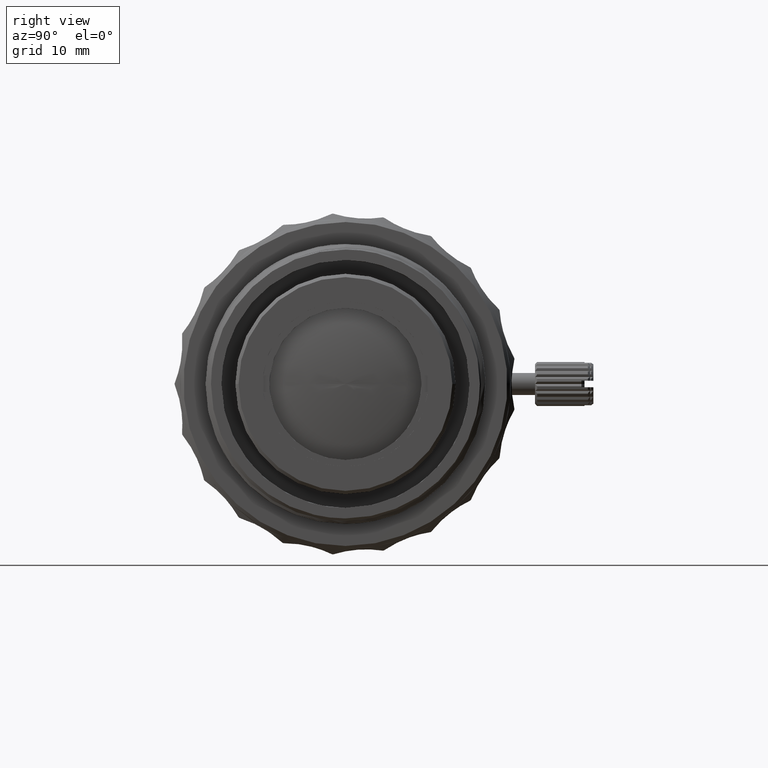
[diagram: clean part render]
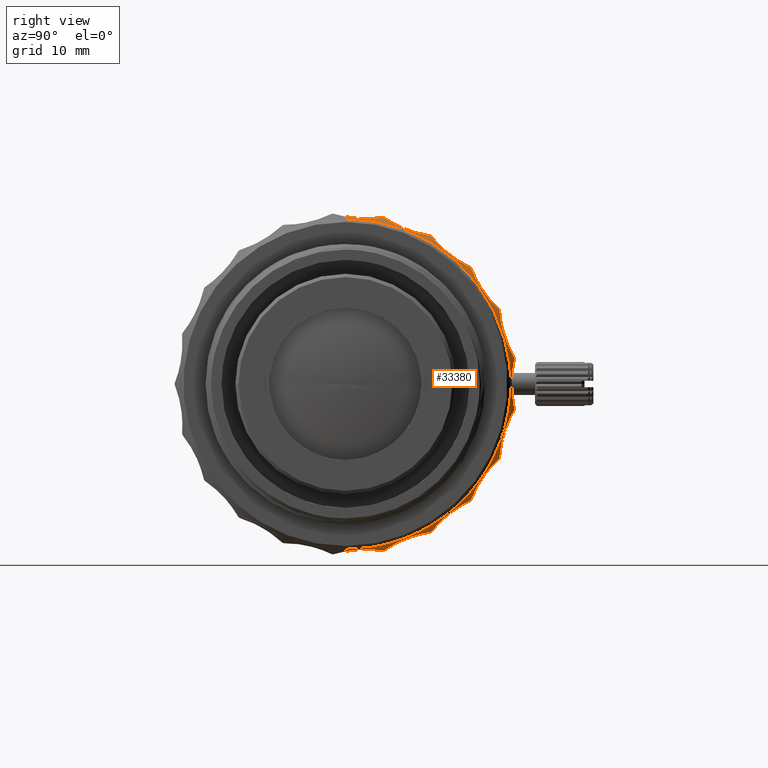
[diagram: same view with one face highlighted and labeled with its STEP entity id]
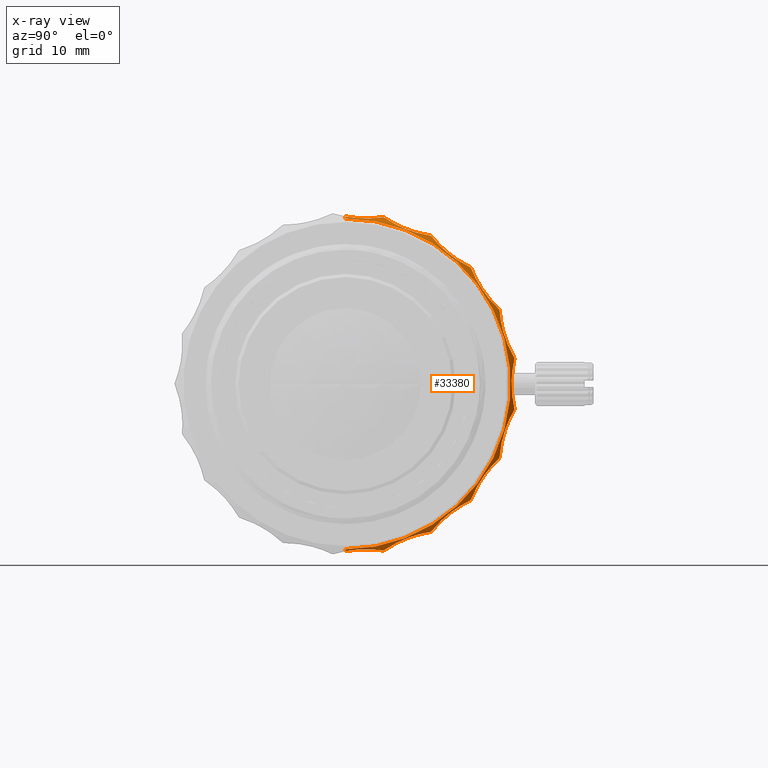
[diagram: x-ray of the same camera — body ghosted, the highlighted face saturated]
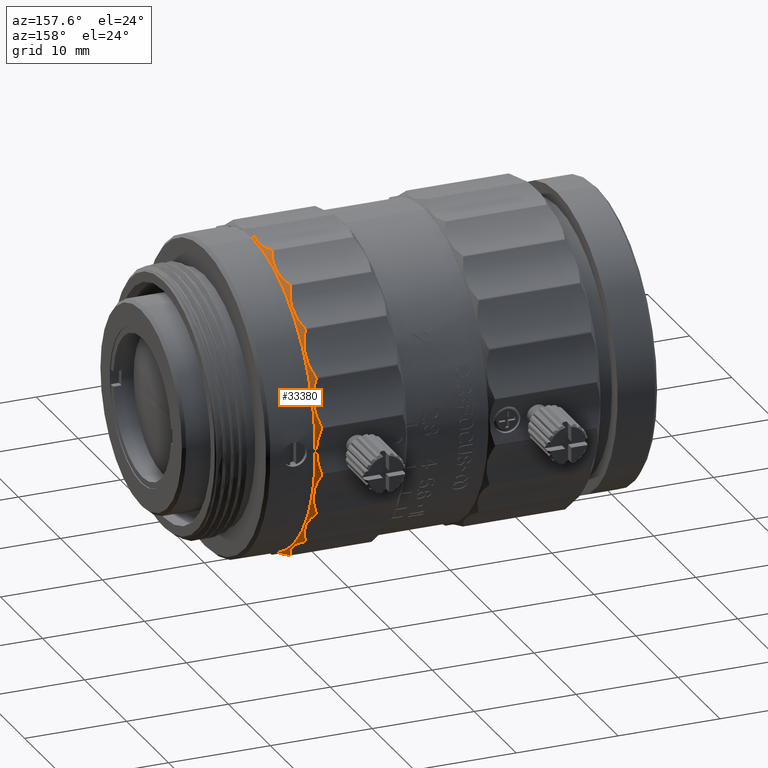
[diagram: same view with one face highlighted and labeled with its STEP entity id]
A machine part, right view. The second image highlights one B-rep face of the part: STEP entity #33380.
The next image is the same camera in x-ray: the body ghosted, the highlighted face saturated — about 0% of this face is hidden behind the body in this view.
A second angle (auxiliary view) of the same face is appended — the face is thin or edge-on in the first view.
In plain terms, the highlighted conical surface has half-angle 45 deg.
Its self-contained STEP definition (entity closure, byte-faithful):
#45 = CARTESIAN_POINT ( 'NONE',  ( -5.189933354804592724, 3.338401390903551036, -15.11566779280315487 ) ) ;
#155 = CARTESIAN_POINT ( 'NONE',  ( -4.843029582633353591, 0.2727128726363823308, -15.13302958263516729 ) ) ;
#442 = CARTESIAN_POINT ( 'NONE',  ( -5.189933354809987520, 11.42136984517044596, -10.44895437492056267 ) ) ;
#543 = CARTESIAN_POINT ( 'NONE',  ( -4.781242811604643705, 1.120612176473343213, -15.03222521955151691 ) ) ;
#813 = CARTESIAN_POINT ( 'NONE',  ( -4.859006872101620189, 11.96265288060991772, -9.296249590100142512 ) ) ;
#831 = CARTESIAN_POINT ( 'NONE',  ( -5.202768681165351516, 13.92570634578212108, -6.789824520128163954 ) ) ;
#910 = VERTEX_POINT ( 'NONE', #69014 ) ;
#1223 = CARTESIAN_POINT ( 'NONE',  ( -5.189933354806639976, 11.27327659012990857, -10.60856124041642623 ) ) ;
#1948 = ORIENTED_EDGE ( 'NONE', *, *, #45969, .T. ) ;
#2090 = CARTESIAN_POINT ( 'NONE',  ( -5.062318181597079025, 10.95099666463011623, 10.76481908734661275 ) ) ;
#2194 = CARTESIAN_POINT ( 'NONE',  ( -5.189933354812221289, 7.834066393900062764, -13.35124490095868133 ) ) ;
#2379 = CARTESIAN_POINT ( 'NONE',  ( -4.859006872095075202, 6.401242783422100402, 13.73132955000739841 ) ) ;
#2424 = CARTESIAN_POINT ( 'NONE',  ( -5.189933354812378496, 15.32288212316973741, 2.199459049155797707 ) ) ;
#2483 = CARTESIAN_POINT ( 'NONE',  ( -4.997818382580611285, 2.805048302243452696, -15.03671790518986562 ) ) ;
#2773 = CARTESIAN_POINT ( 'NONE',  ( -4.787975951717198697, 5.158142970298890795, 14.17324892316079854 ) ) ;
#2791 = EDGE_CURVE ( 'NONE', #66109, #54467, #76570, .T. ) ;
#2849 = CARTESIAN_POINT ( 'NONE',  ( -4.962051012399115280, 15.18315830208983108, -1.492746802016625685 ) ) ;
#2882 = CARTESIAN_POINT ( 'NONE',  ( -4.865722956246789188, 2.244693147680612899, -14.99899148825051753 ) ) ;
#3032 = CARTESIAN_POINT ( 'NONE',  ( -5.202768708097958772, 11.30567882174797845, 10.59285804029776301 ) ) ;
#3062 = CARTESIAN_POINT ( 'NONE',  ( -5.189933354807205745, 7.834052412506481211, 13.35125310476166582 ) ) ;
#3107 = CARTESIAN_POINT ( 'NONE',  ( -4.823379031644251747, 6.213611647818624739, -13.78180046673251447 ) ) ;
#3158 = CARTESIAN_POINT ( 'NONE',  ( -4.832619129399570390, 6.222470874565773968, 13.78440178667723615 ) ) ;
#3541 = VERTEX_POINT ( 'NONE', #38176 ) ;
#3568 = ORIENTED_EDGE ( 'NONE', *, *, #59882, .T. ) ;
#3616 = CARTESIAN_POINT ( 'NONE',  ( -4.788054585054470458, 15.07803394510130701, 0.3817060448345084844 ) ) ;
#3792 = CARTESIAN_POINT ( 'NONE',  ( -5.202768681149106733, 11.40811011138728936, 10.48246335214695080 ) ) ;
#3881 = CARTESIAN_POINT ( 'NONE',  ( -5.202768708102738948, 13.92569929078047863, 6.789839051503815170 ) ) ;
#4138 = ORIENTED_EDGE ( 'NONE', *, *, #10659, .T. ) ;
#5138 = ORIENTED_EDGE ( 'NONE', *, *, #17777, .F. ) ;
#5828 = B_SPLINE_CURVE_WITH_KNOTS ( 'NONE', 3,
 ( #14149, #19237, #54510, #49793, #831, #36883 ),
 .UNSPECIFIED., .F., .F.,
 ( 4, 2, 4 ),
 ( 1.339340778029925837E-15, 0.0001133021664053021155, 0.0002266043328092648889 ),
 .UNSPECIFIED. ) ;
#6529 = CARTESIAN_POINT ( 'NONE',  ( -4.797041463113853155, 14.30141323258823682, -4.808707378282446321 ) ) ;
#6710 = CARTESIAN_POINT ( 'NONE',  ( -5.062318181601936473, 11.55309554662042970, -10.11591030124385071 ) ) ;
#6741 = VERTEX_POINT ( 'NONE', #45 ) ;
#7315 = CARTESIAN_POINT ( 'NONE',  ( -4.832619129403237679, 14.65672697440380112, 3.729508117602908346 ) ) ;
#7496 = CARTESIAN_POINT ( 'NONE',  ( -4.823379031649619009, 12.89749229769112482, -7.886804564961400921 ) ) ;
#7529 = CARTESIAN_POINT ( 'NONE',  ( -4.797041333979803035, 12.67639030796160782, 8.183105281121841656 ) ) ;
#8351 = CARTESIAN_POINT ( 'NONE',  ( -5.189933354812378496, 15.32288212316973741, 2.199459049155797707 ) ) ;
#8376 = B_SPLINE_CURVE_WITH_KNOTS ( 'NONE', 3,
 ( #33325, #15299, #68573, #2379, #3158, #32174, #21947, #2773, #38815, #26306, #45063, #38033 ),
 .UNSPECIFIED., .F., .F.,
 ( 4, 2, 2, 2, 2, 4 ),
 ( 3.260138062363570957E-16, 0.001126233212547860527, 0.001689349818821626317, 0.002252466425095392324, 0.003378699637642924771, 0.004504932850190457652 ),
 .UNSPECIFIED. ) ;
#8701 = EDGE_LOOP ( 'NONE', ( #5138, #4138, #59019, #16693, #71963, #37942, #60627, #40406, #19232, #30428, #26666, #38293, #11898, #1948, #36385, #37389, #44167, #61418, #72754, #13604, #27725, #55314, #3568, #50843 ) ) ;
#8776 = CARTESIAN_POINT ( 'NONE',  ( -5.209999953483781532, 3.485826792431201415, 15.10299412252212647 ) ) ;
#8949 = CARTESIAN_POINT ( 'NONE',  ( -5.202768708094455796, 7.681098842898437695, 13.45465479482610149 ) ) ;
#8968 = CARTESIAN_POINT ( 'NONE',  ( -4.866830318106413422, 2.254493091166262619, 14.99892747982502783 ) ) ;
#9356 = CARTESIAN_POINT ( 'NONE',  ( -4.787583868652236951, 1.401026943211170828, 15.01502326533401011 ) ) ;
#9772 = CARTESIAN_POINT ( 'NONE',  ( -4.788016283333639933, 5.332798377020377067, -14.10472802982782703 ) ) ;
#10659 = EDGE_CURVE ( 'NONE', #54791, #55688, #41646, .T. ) ;
#10722 = EDGE_CURVE ( 'NONE', #67717, #70738, #36440, .T. ) ;
#11324 = CARTESIAN_POINT ( 'NONE',  ( -5.189933354804592724, 3.338401390903551036, -15.11566779280315487 ) ) ;
#11898 = ORIENTED_EDGE ( 'NONE', *, *, #49888, .T. ) ;
#12413 = CARTESIAN_POINT ( 'NONE',  ( -4.823378673526176996, 14.64916844038659960, -3.734815492279059068 ) ) ;
#13008 = CARTESIAN_POINT ( 'NONE',  ( -4.823379031648198811, 12.05361011318263920, 9.124553526296436345 ) ) ;
#13330 = B_SPLINE_CURVE_WITH_KNOTS ( 'NONE', 3,
 ( #65240, #41765, #65629, #53901, #18258, #32344 ),
 .UNSPECIFIED., .F., .F.,
 ( 4, 2, 4 ),
 ( 3.091326394032966987E-17, 0.0001132972184197122582, 0.0002265944368393935896 ),
 .UNSPECIFIED. ) ;
#13427 = CARTESIAN_POINT ( 'NONE',  ( -4.960245751467554420, 10.62756399119786010, -10.94338371591309134 ) ) ;
#13604 = ORIENTED_EDGE ( 'NONE', *, *, #45924, .F. ) ;
#13657 = CARTESIAN_POINT ( 'NONE',  ( -5.209999953487114865, 7.782647623680468918, 13.40454459716902669 ) ) ;
#13867 = CARTESIAN_POINT ( 'NONE',  ( -5.189933354806029797, 3.338385561811710200, 15.11567128876376209 ) ) ;
#13962 = B_SPLINE_CURVE_WITH_KNOTS ( 'NONE', 3,
 ( #64881, #59028, #48041, #48817, #30431, #6529, #72311, #66041, #12413, #41785, #60184, #49193 ),
 .UNSPECIFIED., .F., .F.,
 ( 4, 2, 2, 2, 2, 4 ),
 ( 1.311551046282458265E-15, 0.001126232060482934214, 0.001689348090723746896, 0.002252464120964559578, 0.003378696181446186244, 0.004504928241927812910 ),
 .UNSPECIFIED. ) ;
#14149 = CARTESIAN_POINT ( 'NONE',  ( -5.189933354815540412, 13.99383412809751803, -6.618228091022963611 ) ) ;
#14197 = CARTESIAN_POINT ( 'NONE',  ( -5.189933354806639976, 11.27327659012990857, -10.60856124041642623 ) ) ;
#14344 = CARTESIAN_POINT ( 'NONE',  ( -5.209999953496306624, 7.717361719927903430, -13.44223746166889200 ) ) ;
#14456 = CARTESIAN_POINT ( 'NONE',  ( -4.895057607050690152, -1.174924214024328084E-13, 15.18505760705279961 ) ) ;
#14627 = AXIS2_PLACEMENT_3D ( 'NONE', #41081, #28555, #64551 ) ;
#15299 = CARTESIAN_POINT ( 'NONE',  ( -5.062318181594773314, 7.291487807463582271, 13.51443167453151872 ) ) ;
#15436 = EDGE_CURVE ( 'NONE', #48481, #74201, #13330, .T. ) ;
#15694 = CARTESIAN_POINT ( 'NONE',  ( -5.189933354804854737, 3.550655755641965783, 15.06722205232803447 ) ) ;
#16016 = CARTESIAN_POINT ( 'NONE',  ( -4.961983469051941320, 4.157686480487932990, -14.67883808616010377 ) ) ;
#16149 = CARTESIAN_POINT ( 'NONE',  ( -5.189933354813844879, 15.32288212316957399, -2.199459049155054746 ) ) ;
#16693 = ORIENTED_EDGE ( 'NONE', *, *, #17083, .F. ) ;
#16712 = VERTEX_POINT ( 'NONE', #69521 ) ;
#16926 = CARTESIAN_POINT ( 'NONE',  ( -5.189933248795742138, 15.29043398066922244, -2.414746044752051901 ) ) ;
#17083 = EDGE_CURVE ( 'NONE', #66109, #6741, #69412, .T. ) ;
#17777 = EDGE_CURVE ( 'NONE', #54791, #76569, #47834, .T. ) ;
#18193 = CARTESIAN_POINT ( 'NONE',  ( -4.823379031645496084, 8.828592057674509164, 12.27203960611082678 ) ) ;
#18258 = CARTESIAN_POINT ( 'NONE',  ( -5.202770505034499671, 15.30836282375087976, -2.383505477554932472 ) ) ;
#18839 = CARTESIAN_POINT ( 'NONE',  ( -4.787975951723876911, 12.67010731087939845, -8.182652667131581126 ) ) ;
#18956 = CARTESIAN_POINT ( 'NONE',  ( -4.787975951719972478, 9.106620208647779435, 12.02318145564868068 ) ) ;
#19232 = ORIENTED_EDGE ( 'NONE', *, *, #27378, .T. ) ;
#19237 = CARTESIAN_POINT ( 'NONE',  ( -5.202768708111165097, 13.99104739566686462, -6.654142157707496175 ) ) ;
#19988 = EDGE_CURVE ( 'NONE', #33985, #36749, #38285, .T. ) ;
#20397 = CARTESIAN_POINT ( 'NONE',  ( -4.788016283339038281, 12.35164187011521442, -8.649799676174097840 ) ) ;
#20602 = CARTESIAN_POINT ( 'NONE',  ( -5.189933354811992139, 7.645507551760150733, -13.46010961862424615 ) ) ;
#20746 = CARTESIAN_POINT ( 'NONE',  ( -5.062318181596889843, 3.847118843069682548, -14.86624816620844491 ) ) ;
#20810 = VECTOR ( 'NONE', #65119, 999.9999999999998863 ) ;
#21322 = B_SPLINE_CURVE_WITH_KNOTS ( 'NONE', 3,
 ( #51643, #26610, #8968, #9356, #32094, #57131, #75491, #14456 ),
 .UNSPECIFIED., .F., .F.,
 ( 4, 2, 2, 4 ),
 ( 7.553596619158204685E-16, 0.001698184204076231543, 0.002547276306113969470, 0.003396368408151707180 ),
 .UNSPECIFIED. ) ;
#21469 = CARTESIAN_POINT ( 'NONE',  ( -5.210000046508421079, 15.33249672036679812, 2.272876392476267160 ) ) ;
#21501 = CARTESIAN_POINT ( 'NONE',  ( -4.709999999998630393, 0.000000000000000000, 15.00000000000136424 ) ) ;
#21644 = CARTESIAN_POINT ( 'NONE',  ( -5.062356567079805636, 15.24413262363465726, -1.850186407138761480 ) ) ;
#21947 = CARTESIAN_POINT ( 'NONE',  ( -4.788016283332503065, 5.684442701333891179, 13.96671767097009820 ) ) ;
#22875 = EDGE_CURVE ( 'NONE', #60322, #42811, #62081, .T. ) ;
#24005 = CARTESIAN_POINT ( 'NONE',  ( -4.859006872100265717, 13.02408912275370589, 7.739407141761334152 ) ) ;
#24096 = B_SPLINE_CURVE_WITH_KNOTS ( 'NONE', 3,
 ( #26946, #3032, #56305, #33199, #3792, #62927 ),
 .UNSPECIFIED., .F., .F.,
 ( 4, 2, 4 ),
 ( 1.277968559538170455E-16, 0.0001133021663988971776, 0.0002266043327976665549 ),
 .UNSPECIFIED. ) ;
#24469 = CARTESIAN_POINT ( 'NONE',  ( -5.189933354806639976, 11.27327659012990857, -10.60856124041642623 ) ) ;
#24767 = CARTESIAN_POINT ( 'NONE',  ( -5.189933354809987520, 11.42136984517044596, -10.44895437492056267 ) ) ;
#24837 = CARTESIAN_POINT ( 'NONE',  ( -5.189933354811167021, 15.29043127839418226, 2.414756300361468266 ) ) ;
#25176 = CARTESIAN_POINT ( 'NONE',  ( -5.189933354812454880, 13.89935806409227048, 6.814409884621193569 ) ) ;
#25634 = CARTESIAN_POINT ( 'NONE',  ( -4.960245751466997532, 8.304164344920957674, 12.79623452712831799 ) ) ;
#25638 = CARTESIAN_POINT ( 'NONE',  ( -5.189933354804592724, 3.338401390903551036, -15.11566779280315487 ) ) ;
#25664 = EDGE_CURVE ( 'NONE', #33985, #910, #29912, .T. ) ;
#25718 = CARTESIAN_POINT ( 'NONE',  ( -4.823379031647257342, 14.20761165939505766, 5.166310554995863669 ) ) ;
#26306 = CARTESIAN_POINT ( 'NONE',  ( -4.960245751464434250, 4.163476551122262670, 14.67542934802605359 ) ) ;
#26347 = B_SPLINE_CURVE_WITH_KNOTS ( 'NONE', 3,
 ( #442, #60385, #59230, #77247, #54898, #1223 ),
 .UNSPECIFIED., .F., .F.,
 ( 4, 2, 4 ),
 ( 1.400940382798462735E-15, 0.0001133021663955507198, 0.0002266043327897005149 ),
 .UNSPECIFIED. ) ;
#26610 = CARTESIAN_POINT ( 'NONE',  ( -4.997509557555783744, 2.804175190288041630, 15.03659392969685626 ) ) ;
#26666 = ORIENTED_EDGE ( 'NONE', *, *, #59148, .T. ) ;
#26946 = CARTESIAN_POINT ( 'NONE',  ( -5.189933354809745047, 11.27326548087009428, 10.60857304575918114 ) ) ;
#27378 = EDGE_CURVE ( 'NONE', #3541, #31266, #65323, .T. ) ;
#27391 = CARTESIAN_POINT ( 'NONE',  ( -5.189933354807264365, 3.550671533994828266, -15.06721833408326461 ) ) ;
#27511 = CARTESIAN_POINT ( 'NONE',  ( -5.062307711008020128, 15.24410246618097986, 1.850052651704454210 ) ) ;
#27725 = ORIENTED_EDGE ( 'NONE', *, *, #71113, .T. ) ;
#27785 = CARTESIAN_POINT ( 'NONE',  ( -5.210000046509339455, 13.94865948470847528, 6.759165729231294328 ) ) ;
#28153 = CARTESIAN_POINT ( 'NONE',  ( -5.189933354811992139, 7.645507551760150733, -13.46010961862424615 ) ) ;
#28555 = DIRECTION ( 'NONE',  ( -1.000000000000000000, 0.000000000000000000, 0.000000000000000000 ) ) ;
#28879 = CARTESIAN_POINT ( 'NONE',  ( -5.202768681155858665, 15.30835981889149799, 2.383512932249200134 ) ) ;
#29912 = B_SPLINE_CURVE_WITH_KNOTS ( 'NONE', 3,
 ( #52829, #3881, #27785, #64940, #59089, #76712 ),
 .UNSPECIFIED., .F., .F.,
 ( 4, 2, 4 ),
 ( 1.280321119971187705E-16, 0.0001133021664011357705, 0.0002266043328021435238 ),
 .UNSPECIFIED. ) ;
#30428 = ORIENTED_EDGE ( 'NONE', *, *, #64291, .F. ) ;
#30431 = CARTESIAN_POINT ( 'NONE',  ( -4.832619327915891994, 14.21086742760113886, -5.174952104287971366 ) ) ;
#30615 = CARTESIAN_POINT ( 'NONE',  ( -4.961983469057007490, 11.70412668063718264, -9.786115831804149678 ) ) ;
#31077 = CARTESIAN_POINT ( 'NONE',  ( -4.859006872097235252, 8.691067489656878919, -12.40929757373471531 ) ) ;
#31138 = CARTESIAN_POINT ( 'NONE',  ( -5.189933354804854737, 3.550655755641965783, 15.06722205232803447 ) ) ;
#31205 = CARTESIAN_POINT ( 'NONE',  ( -5.189933354812679589, 13.99382719749548265, 6.618242745329959043 ) ) ;
#31266 = VERTEX_POINT ( 'NONE', #71569 ) ;
#31387 = CARTESIAN_POINT ( 'NONE',  ( -5.189933354818002442, 13.89936520012187060, -6.814395329244525179 ) ) ;
#31935 = VERTEX_POINT ( 'NONE', #71677 ) ;
#31971 = CARTESIAN_POINT ( 'NONE',  ( -5.062318181597566635, 15.11217684686295115, 2.725393344307811994 ) ) ;
#32094 = CARTESIAN_POINT ( 'NONE',  ( -4.781381377855362658, 1.114295766572763302, 15.03278204986566458 ) ) ;
#32174 = CARTESIAN_POINT ( 'NONE',  ( -4.797041333974337185, 5.864016462200745572, 13.90206438672258926 ) ) ;
#32226 = CARTESIAN_POINT ( 'NONE',  ( -4.961983469052598572, 8.299636254325255535, -12.80119847809751654 ) ) ;
#32344 = CARTESIAN_POINT ( 'NONE',  ( -5.189933248795742138, 15.29043398066922244, -2.414746044752051901 ) ) ;
#33199 = CARTESIAN_POINT ( 'NONE',  ( -5.209999953488438251, 11.38794583119321757, 10.51504206542813158 ) ) ;
#33226 = VERTEX_POINT ( 'NONE', #2424 ) ;
#33325 = CARTESIAN_POINT ( 'NONE',  ( -5.189933354806789190, 7.645493456363349871, 13.46011762496891784 ) ) ;
#33380 = ADVANCED_FACE ( 'NONE', ( #77097 ), #67105, .T. ) ;
#33661 = CARTESIAN_POINT ( 'NONE',  ( -4.787975951718460799, 5.859080173320552198, -13.89815108072127892 ) ) ;
#33912 = B_SPLINE_CURVE_WITH_KNOTS ( 'NONE', 3,
 ( #62570, #8949, #37937, #13657, #56719, #3062 ),
 .UNSPECIFIED., .F., .F.,
 ( 4, 2, 4 ),
 ( 3.340018489162553608E-16, 0.0001133021663971870113, 0.0002266043327940400070 ),
 .UNSPECIFIED. ) ;
#33960 = VERTEX_POINT ( 'NONE', #24837 ) ;
#33985 = VERTEX_POINT ( 'NONE', #35780 ) ;
#35417 = CARTESIAN_POINT ( 'NONE',  ( -4.709999999998630393, 1.867816120320720824E-15, -15.00000000000136424 ) ) ;
#35520 = CARTESIAN_POINT ( 'NONE',  ( -5.189933354811167021, 15.29043127839418226, 2.414756300361468266 ) ) ;
#35780 = CARTESIAN_POINT ( 'NONE',  ( -5.189933354812454880, 13.89935806409227048, 6.814409884621193569 ) ) ;
#36385 = ORIENTED_EDGE ( 'NONE', *, *, #46180, .T. ) ;
#36440 = B_SPLINE_CURVE_WITH_KNOTS ( 'NONE', 3,
 ( #58884, #47141, #32226, #31077, #60811, #73700, #67064, #43962, #42810, #13427, #48681, #14197 ),
 .UNSPECIFIED., .F., .F.,
 ( 4, 2, 2, 2, 2, 4 ),
 ( 3.549332832210533618E-16, 0.001126233212547322112, 0.001689349818820804058, 0.002252466425094286004, 0.003378699637641254232, 0.004504932850188222461 ),
 .UNSPECIFIED. ) ;
#36749 = VERTEX_POINT ( 'NONE', #76219 ) ;
#36883 = CARTESIAN_POINT ( 'NONE',  ( -5.189933354818002442, 13.89936520012187060, -6.814395329244525179 ) ) ;
#36907 = CARTESIAN_POINT ( 'NONE',  ( -5.189933354807895860, 11.42135890304857071, 10.44896633534061259 ) ) ;
#37075 = CARTESIAN_POINT ( 'NONE',  ( -4.797041333978246058, 14.52522668178796295, 4.083120513080162439 ) ) ;
#37389 = ORIENTED_EDGE ( 'NONE', *, *, #25664, .F. ) ;
#37467 = CARTESIAN_POINT ( 'NONE',  ( -5.202768708103117312, 7.811532770575456475, -13.37934867087157897 ) ) ;
#37937 = CARTESIAN_POINT ( 'NONE',  ( -5.210000046500501192, 7.717348344307549013, 13.44224524801943943 ) ) ;
#37942 = ORIENTED_EDGE ( 'NONE', *, *, #62716, .F. ) ;
#38033 = CARTESIAN_POINT ( 'NONE',  ( -5.189933354804854737, 3.550655755641965783, 15.06722205232803447 ) ) ;
#38156 = CARTESIAN_POINT ( 'NONE',  ( -5.202768681145864882, 3.520839546791262986, 15.08743527337534296 ) ) ;
#38176 = CARTESIAN_POINT ( 'NONE',  ( -5.189933354809987520, 11.42136984517044596, -10.44895437492056267 ) ) ;
#38230 = CARTESIAN_POINT ( 'NONE',  ( -5.062212582489059365, 14.02155751504902703, 6.260872608486173441 ) ) ;
#38285 = B_SPLINE_CURVE_WITH_KNOTS ( 'NONE', 3,
 ( #25176, #54141, #60398, #24005, #73287, #7529, #47879, #43551, #13008, #67424, #72148, #36907 ),
 .UNSPECIFIED., .F., .F.,
 ( 4, 2, 2, 2, 2, 4 ),
 ( 1.243447077071789887E-16, 0.001126233212545216808, 0.001689349818817763088, 0.002252466425090309584, 0.003378699637635402143, 0.004504932850180494268 ),
 .UNSPECIFIED. ) ;
#38293 = ORIENTED_EDGE ( 'NONE', *, *, #15436, .F. ) ;
#38465 = CARTESIAN_POINT ( 'NONE',  ( -4.709999999949632254, 0.000000000000000000, 14.99999999995236699 ) ) ;
#38622 = CARTESIAN_POINT ( 'NONE',  ( -4.961983469053453000, 14.94849981029084240, 3.049097875035453598 ) ) ;
#38815 = CARTESIAN_POINT ( 'NONE',  ( -4.823379031642760495, 4.819114594670729446, 14.32910075120329374 ) ) ;
#39908 = CARTESIAN_POINT ( 'NONE',  ( -4.859006872096366614, 4.647242356644765593, -14.41972464584013913 ) ) ;
#40055 = EDGE_CURVE ( 'NONE', #31935, #48072, #64863, .T. ) ;
#40406 = ORIENTED_EDGE ( 'NONE', *, *, #42484, .F. ) ;
#40819 = CARTESIAN_POINT ( 'NONE',  ( -4.797041333980848421, 12.24865077789797319, -8.810484515781626058 ) ) ;
#41081 = CARTESIAN_POINT ( 'NONE',  ( -4.709999999949632254, 0.000000000000000000, 0.000000000000000000 ) ) ;
#41646 = LINE ( 'NONE', #64741, #20810 ) ;
#41765 = CARTESIAN_POINT ( 'NONE',  ( -5.202768147575272728, 15.33080467338079167, -2.234597431748121643 ) ) ;
#41785 = CARTESIAN_POINT ( 'NONE',  ( -4.960244848162111531, 14.94553167304007957, -3.055129909809556565 ) ) ;
#42073 = DIRECTION ( 'NONE',  ( 1.000000000000000000, -0.000000000000000000, -0.000000000000000000 ) ) ;
#42262 = CARTESIAN_POINT ( 'NONE',  ( -5.189933354807264365, 3.550671533994828266, -15.06721833408326461 ) ) ;
#42457 = CARTESIAN_POINT ( 'NONE',  ( -4.709999999998630393, 0.000000000000000000, 0.000000000000000000 ) ) ;
#42483 = CARTESIAN_POINT ( 'NONE',  ( -5.189933354812221289, 7.834066393900062764, -13.35124490095868133 ) ) ;
#42484 = EDGE_CURVE ( 'NONE', #3541, #70738, #26347, .T. ) ;
#42486 = CARTESIAN_POINT ( 'NONE',  ( -4.895060640931499840, 2.263147751845408461E-15, -15.18506064093295116 ) ) ;
#42810 = CARTESIAN_POINT ( 'NONE',  ( -4.823379031645308679, 9.999815882025540503, -11.33801905715267822 ) ) ;
#42811 = VERTEX_POINT ( 'NONE', #15694 ) ;
#42877 = CARTESIAN_POINT ( 'NONE',  ( -5.210000046497185622, 3.412316114073647100, 15.11977253508854879 ) ) ;
#43551 = CARTESIAN_POINT ( 'NONE',  ( -4.787975951722748924, 12.24593401000745452, 8.804801199495241093 ) ) ;
#43705 = CARTESIAN_POINT ( 'NONE',  ( -4.788016283336526513, 14.46381227330954466, 4.263827605323544212 ) ) ;
#43884 = EDGE_CURVE ( 'NONE', #76569, #49243, #68973, .T. ) ;
#43962 = CARTESIAN_POINT ( 'NONE',  ( -4.787975951719547929, 9.695330202474501391, -11.55370054160009730 ) ) ;
#44167 = ORIENTED_EDGE ( 'NONE', *, *, #19988, .T. ) ;
#44488 = CARTESIAN_POINT ( 'NONE',  ( -5.210000046509501104, 7.782661054671172529, -13.40453690671993137 ) ) ;
#45063 = CARTESIAN_POINT ( 'NONE',  ( -5.062212582484469259, 3.847348579809661384, 14.86608589618717957 ) ) ;
#45087 = DIRECTION ( 'NONE',  ( -0.7071067811890004995, 0.000000000000000000, 0.7071067811840946460 ) ) ;
#45779 = CARTESIAN_POINT ( 'NONE',  ( -4.832619129400784530, 4.814389673972136130, -14.33703346123400735 ) ) ;
#45917 = CARTESIAN_POINT ( 'NONE',  ( -4.787951174076767735, 15.07797176985431875, -0.3800736767096484781 ) ) ;
#45924 = EDGE_CURVE ( 'NONE', #49053, #48072, #33912, .T. ) ;
#45969 = EDGE_CURVE ( 'NONE', #33226, #33960, #68440, .T. ) ;
#46125 = CARTESIAN_POINT ( 'NONE',  ( -5.209999953494911296, 15.32125866492736677, 2.347435369611641232 ) ) ;
#46180 = EDGE_CURVE ( 'NONE', #33960, #910, #61903, .T. ) ;
#46969 = CARTESIAN_POINT ( 'NONE',  ( -5.210000046496960024, 3.485841893517003243, -15.10299073258422453 ) ) ;
#47141 = CARTESIAN_POINT ( 'NONE',  ( -5.062318181597221134, 8.058106369977682704, -13.07182388429911590 ) ) ;
#47834 = CIRCLE ( 'NONE', #57844, 15.00000000000136424 ) ;
#47879 = CARTESIAN_POINT ( 'NONE',  ( -4.788016283338015988, 12.56444001113663411, 8.337681844017078348 ) ) ;
#48041 = CARTESIAN_POINT ( 'NONE',  ( -4.961983674926733201, 14.06865364813515029, -5.901494298028747920 ) ) ;
#48072 = VERTEX_POINT ( 'NONE', #65868 ) ;
#48344 = CARTESIAN_POINT ( 'NONE',  ( -4.788016283335265300, 9.548661746479034207, 11.67069621645375754 ) ) ;
#48481 = VERTEX_POINT ( 'NONE', #62124 ) ;
#48681 = CARTESIAN_POINT ( 'NONE',  ( -5.062212582487682688, 10.95074126637933709, -10.76493691037043376 ) ) ;
#48731 = CARTESIAN_POINT ( 'NONE',  ( -4.832619129402265123, 10.00904827069748926, 11.33789350436399701 ) ) ;
#48817 = CARTESIAN_POINT ( 'NONE',  ( -4.859007085595395736, 14.17130344699740441, -5.357190065018983205 ) ) ;
#48993 = CARTESIAN_POINT ( 'NONE',  ( -5.062212582491924628, 13.63725176589922938, -7.058892635608472688 ) ) ;
#49053 = VERTEX_POINT ( 'NONE', #61194 ) ;
#49193 = CARTESIAN_POINT ( 'NONE',  ( -5.189933248795742138, 15.29043398066922244, -2.414746044752051901 ) ) ;
#49243 = VERTEX_POINT ( 'NONE', #52553 ) ;
#49495 = CARTESIAN_POINT ( 'NONE',  ( -5.189933354807205745, 7.834052412506481211, 13.35125310476166582 ) ) ;
#49793 = CARTESIAN_POINT ( 'NONE',  ( -5.209999953504921066, 13.94866614995817500, -6.759151761085206545 ) ) ;
#49888 = EDGE_CURVE ( 'NONE', #48481, #33226, #67921, .T. ) ;
#49977 = CARTESIAN_POINT ( 'NONE',  ( -5.202768681157543540, 7.681112857826971840, -13.45464676266803039 ) ) ;
#50222 = VECTOR ( 'NONE', #45087, 999.9999999999998863 ) ;
#50843 = ORIENTED_EDGE ( 'NONE', *, *, #43884, .F. ) ;
#51286 = CARTESIAN_POINT ( 'NONE',  ( -4.960245751466681341, 6.929791488241664688, -13.58972970556016158 ) ) ;
#51643 = CARTESIAN_POINT ( 'NONE',  ( -5.189933354806029797, 3.338385561811710200, 15.11567128876376209 ) ) ;
#52553 = CARTESIAN_POINT ( 'NONE',  ( -4.895057607050690152, -1.174924214024328084E-13, 15.18505760705279961 ) ) ;
#52829 = CARTESIAN_POINT ( 'NONE',  ( -5.189933354812454880, 13.89935806409227048, 6.814409884621193569 ) ) ;
#53901 = CARTESIAN_POINT ( 'NONE',  ( -5.210000562130685076, 15.32126026019715859, -2.347428949920649099 ) ) ;
#54001 = CARTESIAN_POINT ( 'NONE',  ( -5.209999953482968849, 3.412331190519248381, -15.11976903718766785 ) ) ;
#54141 = CARTESIAN_POINT ( 'NONE',  ( -5.062318181599083644, 13.63746108856153150, 7.058704767170376648 ) ) ;
#54222 = CARTESIAN_POINT ( 'NONE',  ( -4.808854021592186001, 0.5530853996797805427, -15.09141133628800802 ) ) ;
#54467 = VERTEX_POINT ( 'NONE', #70083 ) ;
#54510 = CARTESIAN_POINT ( 'NONE',  ( -5.210000046518224792, 13.98138150668348700, -6.691217672468265931 ) ) ;
#54791 = VERTEX_POINT ( 'NONE', #35417 ) ;
#54898 = CARTESIAN_POINT ( 'NONE',  ( -5.202768681145902185, 11.30568984650265563, -10.59284623400028558 ) ) ;
#55314 = ORIENTED_EDGE ( 'NONE', *, *, #22875, .F. ) ;
#55688 = VERTEX_POINT ( 'NONE', #63791 ) ;
#55762 = CARTESIAN_POINT ( 'NONE',  ( -4.787843017356705033, 1.402772461581219376, -15.01504888914694469 ) ) ;
#55845 = CARTESIAN_POINT ( 'NONE',  ( -4.960245751469138931, 14.06959873479530998, 5.894841387403036315 ) ) ;
#55846 = EDGE_CURVE ( 'NONE', #31935, #36749, #24096, .T. ) ;
#56305 = CARTESIAN_POINT ( 'NONE',  ( -5.210000046503392213, 11.33666008026038874, 10.57031508518115359 ) ) ;
#56719 = CARTESIAN_POINT ( 'NONE',  ( -5.202768681148755014, 7.811518807053696278, 13.37935679207621575 ) ) ;
#57111 = CARTESIAN_POINT ( 'NONE',  ( -5.189933354811167021, 15.29043127839418226, 2.414756300361468266 ) ) ;
#57131 = CARTESIAN_POINT ( 'NONE',  ( -4.809065289997527692, 0.5522238637193250810, 15.09160283115561718 ) ) ;
#57844 = AXIS2_PLACEMENT_3D ( 'NONE', #42457, #42073, #61212 ) ;
#58227 = B_SPLINE_CURVE_WITH_KNOTS ( 'NONE', 3,
 ( #42486, #155, #54222, #543, #55762, #2882, #2483, #25638 ),
 .UNSPECIFIED., .F., .F.,
 ( 4, 2, 2, 4 ),
 ( 0.001116818944933246124, 0.001963847421248128729, 0.002810875897563011767, 0.004504932850192776977 ),
 .UNSPECIFIED. ) ;
#58344 = CARTESIAN_POINT ( 'NONE',  ( -5.202768681145018448, 3.374035057920269587, -15.12094248618070935 ) ) ;
#58884 = CARTESIAN_POINT ( 'NONE',  ( -5.189933354812221289, 7.834066393900062764, -13.35124490095868133 ) ) ;
#59019 = ORIENTED_EDGE ( 'NONE', *, *, #75176, .T. ) ;
#59028 = CARTESIAN_POINT ( 'NONE',  ( -5.062318312556769229, 14.02154111595052122, -6.261153764039256053 ) ) ;
#59089 = CARTESIAN_POINT ( 'NONE',  ( -5.202768681157565744, 13.99104043330055092, 6.654156733700558490 ) ) ;
#59148 = EDGE_CURVE ( 'NONE', #16712, #74201, #13962, .T. ) ;
#59230 = CARTESIAN_POINT ( 'NONE',  ( -5.210000046498486803, 11.38795639866980203, -10.51503075778507146 ) ) ;
#59484 = CARTESIAN_POINT ( 'NONE',  ( -5.202768708091682903, 3.520855283716370465, -15.08743162878624311 ) ) ;
#59882 = EDGE_CURVE ( 'NONE', #60322, #49243, #21322, .T. ) ;
#60184 = CARTESIAN_POINT ( 'NONE',  ( -5.062211358998196964, 15.11203029731123770, -2.725638195233076821 ) ) ;
#60322 = VERTEX_POINT ( 'NONE', #65963 ) ;
#60385 = CARTESIAN_POINT ( 'NONE',  ( -5.202768708092812666, 11.40812106076939259, -10.48245147592097481 ) ) ;
#60398 = CARTESIAN_POINT ( 'NONE',  ( -4.961983469055082807, 13.38564216505060855, 7.319783347823823227 ) ) ;
#60627 = ORIENTED_EDGE ( 'NONE', *, *, #10722, .T. ) ;
#60811 = CARTESIAN_POINT ( 'NONE',  ( -4.832619129401711788, 8.826415259716991812, -12.28101258302654308 ) ) ;
#60862 = CARTESIAN_POINT ( 'NONE',  ( -4.961983469052825058, 10.63341107802548891, 10.94007373263616145 ) ) ;
#60943 = CARTESIAN_POINT ( 'NONE',  ( -4.787975951721532120, 14.29714247418568540, 4.804075458700666879 ) ) ;
#61123 = CARTESIAN_POINT ( 'NONE',  ( -4.960245751471846987, 13.38103048283213603, -7.324669737153023164 ) ) ;
#61194 = CARTESIAN_POINT ( 'NONE',  ( -5.189933354806789190, 7.645493456363349871, 13.46011762496891784 ) ) ;
#61212 = DIRECTION ( 'NONE',  ( 0.000000000000000000, 0.000000000000000000, 1.000000000000000000 ) ) ;
#61232 = CARTESIAN_POINT ( 'NONE',  ( -5.189933354809745047, 11.27326548087009428, 10.60857304575918114 ) ) ;
#61418 = ORIENTED_EDGE ( 'NONE', *, *, #55846, .F. ) ;
#61903 = B_SPLINE_CURVE_WITH_KNOTS ( 'NONE', 3,
 ( #35520, #31971, #38622, #66811, #7315, #37075, #43705, #60943, #25718, #55845, #38230, #31205 ),
 .UNSPECIFIED., .F., .F.,
 ( 4, 2, 2, 2, 2, 4 ),
 ( 1.361654338506873322E-16, 0.001126233212546928113, 0.001689349818820324407, 0.002252466425093722219, 0.003378699637640516108, 0.004504932850187310864 ),
 .UNSPECIFIED. ) ;
#62081 = B_SPLINE_CURVE_WITH_KNOTS ( 'NONE', 3,
 ( #13867, #67134, #42877, #8776, #38156, #31138 ),
 .UNSPECIFIED., .F., .F.,
 ( 4, 2, 4 ),
 ( 7.725146740913584061E-16, 0.0001133021663943207331, 0.0002266043327878689451 ),
 .UNSPECIFIED. ) ;
#62124 = CARTESIAN_POINT ( 'NONE',  ( -5.189933354813844879, 15.32288212316957399, -2.199459049155054746 ) ) ;
#62363 = CARTESIAN_POINT ( 'NONE',  ( -4.824760448927145617, 15.10003611956218528, -0.7592243231145276994 ) ) ;
#62570 = CARTESIAN_POINT ( 'NONE',  ( -5.189933354806789190, 7.645493456363349871, 13.46011762496891784 ) ) ;
#62618 = CARTESIAN_POINT ( 'NONE',  ( -5.062212582487134682, 7.291209026897797152, -13.51446898303838218 ) ) ;
#62716 = EDGE_CURVE ( 'NONE', #67717, #54467, #77001, .T. ) ;
#62927 = CARTESIAN_POINT ( 'NONE',  ( -5.189933354807895860, 11.42135890304857071, 10.44896633534061259 ) ) ;
#63383 = CARTESIAN_POINT ( 'NONE',  ( -4.797041333975467836, 5.157186142588744637, -14.17947510919417020 ) ) ;
#63791 = CARTESIAN_POINT ( 'NONE',  ( -4.895060640931499840, 2.263147751845408461E-15, -15.18506064093295116 ) ) ;
#64291 = EDGE_CURVE ( 'NONE', #16712, #31266, #5828, .T. ) ;
#64496 = CARTESIAN_POINT ( 'NONE',  ( -5.202768708102038175, 15.33080501937898710, 2.234598966332217884 ) ) ;
#64551 = DIRECTION ( 'NONE',  ( 0.000000000000000000, 0.000000000000000000, 1.000000000000000000 ) ) ;
#64741 = CARTESIAN_POINT ( 'NONE',  ( -4.709999999949632254, 1.836970198715196357E-15, -14.99999999995236699 ) ) ;
#64863 = B_SPLINE_CURVE_WITH_KNOTS ( 'NONE', 3,
 ( #61232, #2090, #60862, #72229, #48731, #65955, #48344, #18956, #18193, #25634, #72599, #49495 ),
 .UNSPECIFIED., .F., .F.,
 ( 4, 2, 2, 2, 2, 4 ),
 ( 1.241388288193343364E-16, 0.001126233212546829451, 0.001689349818820183461, 0.002252466425093537471, 0.003378699637640242889, 0.004504932850186948307 ),
 .UNSPECIFIED. ) ;
#64881 = CARTESIAN_POINT ( 'NONE',  ( -5.189933354815540412, 13.99383412809751803, -6.618228091022963611 ) ) ;
#64940 = CARTESIAN_POINT ( 'NONE',  ( -5.209999953496382119, 13.98137474166150085, 6.691231592568787079 ) ) ;
#65119 = DIRECTION ( 'NONE',  ( -0.7071067811890004995, 8.659560562324893281E-17, -0.7071067811840946460 ) ) ;
#65240 = CARTESIAN_POINT ( 'NONE',  ( -5.189933354813844879, 15.32288212316957399, -2.199459049155054746 ) ) ;
#65323 = B_SPLINE_CURVE_WITH_KNOTS ( 'NONE', 3,
 ( #24767, #6710, #30615, #813, #70562, #40819, #20397, #18839, #7496, #61123, #48993, #31387 ),
 .UNSPECIFIED., .F., .F.,
 ( 4, 2, 2, 2, 2, 4 ),
 ( 1.371376809004752959E-15, 0.001126233212548210507, 0.001689349818821632172, 0.002252466425095053619, 0.003378699637641899983, 0.004504932850188746347 ),
 .UNSPECIFIED. ) ;
#65629 = CARTESIAN_POINT ( 'NONE',  ( -5.209999437808676248, 15.33249659733685633, -2.272873044033446366 ) ) ;
#65868 = CARTESIAN_POINT ( 'NONE',  ( -5.189933354807205745, 7.834052412506481211, 13.35125310476166582 ) ) ;
#65955 = CARTESIAN_POINT ( 'NONE',  ( -4.797041333977082544, 9.701200653201153656, 11.55598499341160945 ) ) ;
#65963 = CARTESIAN_POINT ( 'NONE',  ( -5.189933354806029797, 3.338385561811710200, 15.11567128876376209 ) ) ;
#66041 = CARTESIAN_POINT ( 'NONE',  ( -4.787975806662112532, 14.51908853499434748, -4.084542495746582347 ) ) ;
#66109 = VERTEX_POINT ( 'NONE', #72624 ) ;
#66811 = CARTESIAN_POINT ( 'NONE',  ( -4.859006872098612817, 14.72669586510122386, 3.556648602285391370 ) ) ;
#67064 = CARTESIAN_POINT ( 'NONE',  ( -4.788016283334688872, 9.253319271992364037, -11.90622416116748994 ) ) ;
#67105 = CONICAL_SURFACE ( 'NONE', #14627, 14.99999999995236699, 0.7853981633939792761 ) ;
#67134 = CARTESIAN_POINT ( 'NONE',  ( -5.202768708091404015, 3.374019298112613363, 15.12094603052935682 ) ) ;
#67424 = CARTESIAN_POINT ( 'NONE',  ( -4.960245751469382292, 11.70699045033174635, 9.780037736974305673 ) ) ;
#67717 = VERTEX_POINT ( 'NONE', #42483 ) ;
#67921 = B_SPLINE_CURVE_WITH_KNOTS ( 'NONE', 3,
 ( #16149, #21644, #2849, #62363, #45917, #3616, #69405, #74882, #27511, #8351 ),
 .UNSPECIFIED., .F., .F.,
 ( 4, 2, 2, 2, 4 ),
 ( -0.002248682233663226466, -0.001123939433070392279, 8.033675224419084548E-07, 0.001125546168115275445, 0.002250288968708109415 ),
 .UNSPECIFIED. ) ;
#68440 = B_SPLINE_CURVE_WITH_KNOTS ( 'NONE', 3,
 ( #69228, #64496, #21469, #46125, #28879, #57111 ),
 .UNSPECIFIED., .F., .F.,
 ( 4, 2, 4 ),
 ( 2.510978525483185883E-16, 0.0001133021664007543888, 0.0002266043328012576764 ),
 .UNSPECIFIED. ) ;
#68573 = CARTESIAN_POINT ( 'NONE',  ( -4.961983469050319506, 6.936354440172399549, 13.58829023497860788 ) ) ;
#68973 = LINE ( 'NONE', #38465, #50222 ) ;
#69014 = CARTESIAN_POINT ( 'NONE',  ( -5.189933354812679589, 13.99382719749548265, 6.618242745329959043 ) ) ;
#69228 = CARTESIAN_POINT ( 'NONE',  ( -5.189933354812378496, 15.32288212316973741, 2.199459049155797707 ) ) ;
#69405 = CARTESIAN_POINT ( 'NONE',  ( -4.824244977269494861, 15.09972627275065271, 0.7550366662852262545 ) ) ;
#69412 = B_SPLINE_CURVE_WITH_KNOTS ( 'NONE', 3,
 ( #42262, #59484, #46969, #54001, #58344, #11324 ),
 .UNSPECIFIED., .F., .F.,
 ( 4, 2, 4 ),
 ( 8.621226629610369455E-16, 0.0001133021663919339434, 0.0002266043327830057834 ),
 .UNSPECIFIED. ) ;
#69521 = CARTESIAN_POINT ( 'NONE',  ( -5.189933354815540412, 13.99383412809751803, -6.618228091022963611 ) ) ;
#70083 = CARTESIAN_POINT ( 'NONE',  ( -5.189933354811992139, 7.645507551760150733, -13.46010961862424615 ) ) ;
#70562 = CARTESIAN_POINT ( 'NONE',  ( -4.832619129406089620, 12.05417485609026684, -9.133769481454777406 ) ) ;
#70738 = VERTEX_POINT ( 'NONE', #24469 ) ;
#71113 = EDGE_CURVE ( 'NONE', #49053, #42811, #8376, .T. ) ;
#71569 = CARTESIAN_POINT ( 'NONE',  ( -5.189933354818002442, 13.89936520012187060, -6.814395329244525179 ) ) ;
#71677 = CARTESIAN_POINT ( 'NONE',  ( -5.189933354809745047, 11.27326548087009428, 10.60857304575918114 ) ) ;
#71963 = ORIENTED_EDGE ( 'NONE', *, *, #2791, .T. ) ;
#72148 = CARTESIAN_POINT ( 'NONE',  ( -5.062212582488814228, 11.55319395403969729, 10.11564681213479311 ) ) ;
#72229 = CARTESIAN_POINT ( 'NONE',  ( -4.859006872097728191, 10.16423452370633207, 11.23448516534677921 ) ) ;
#72311 = CARTESIAN_POINT ( 'NONE',  ( -4.788016356110777139, 14.35246593411517857, -4.624804326706822621 ) ) ;
#72599 = CARTESIAN_POINT ( 'NONE',  ( -5.062212582486787404, 8.058278070224117684, 13.07160110737758707 ) ) ;
#72624 = CARTESIAN_POINT ( 'NONE',  ( -5.189933354807264365, 3.550671533994828266, -15.06721833408326461 ) ) ;
#72754 = ORIENTED_EDGE ( 'NONE', *, *, #40055, .T. ) ;
#73287 = CARTESIAN_POINT ( 'NONE',  ( -4.832619129404874592, 12.90627750975786547, 7.883963295364159407 ) ) ;
#73700 = CARTESIAN_POINT ( 'NONE',  ( -4.797041333976487465, 9.107541090964566877, -12.02941305957979345 ) ) ;
#74201 = VERTEX_POINT ( 'NONE', #16926 ) ;
#74882 = CARTESIAN_POINT ( 'NONE',  ( -4.960929396248046963, 15.18247700544481837, 1.488170714328035382 ) ) ;
#75176 = EDGE_CURVE ( 'NONE', #55688, #6741, #58227, .T. ) ;
#75491 = CARTESIAN_POINT ( 'NONE',  ( -4.842682916993391373, 0.2745179418727076159, 15.13268291699568913 ) ) ;
#76219 = CARTESIAN_POINT ( 'NONE',  ( -5.189933354807895860, 11.42135890304857071, 10.44896633534061259 ) ) ;
#76569 = VERTEX_POINT ( 'NONE', #21501 ) ;
#76570 = B_SPLINE_CURVE_WITH_KNOTS ( 'NONE', 3,
 ( #27391, #20746, #16016, #39908, #45779, #63383, #9772, #33661, #3107, #51286, #62618, #28153 ),
 .UNSPECIFIED., .F., .F.,
 ( 4, 2, 2, 2, 2, 4 ),
 ( 8.435578967261410882E-16, 0.001126233212548789688, 0.001689349818822763862, 0.002252466425096738036, 0.003378699637644685515, 0.004504932850192632995 ),
 .UNSPECIFIED. ) ;
#76712 = CARTESIAN_POINT ( 'NONE',  ( -5.189933354812679589, 13.99382719749548265, 6.618242745329959043 ) ) ;
#77001 = B_SPLINE_CURVE_WITH_KNOTS ( 'NONE', 3,
 ( #2194, #37467, #44488, #14344, #49977, #20602 ),
 .UNSPECIFIED., .F., .F.,
 ( 4, 2, 4 ),
 ( 3.647676357404801061E-16, 0.0001133021663992757403, 0.0002266043327981867280 ),
 .UNSPECIFIED. ) ;
#77097 = FACE_OUTER_BOUND ( 'NONE', #8701, .T. ) ;
#77247 = CARTESIAN_POINT ( 'NONE',  ( -5.209999953484325985, 11.33667056656027228, -10.57030370221298554 ) ) ;